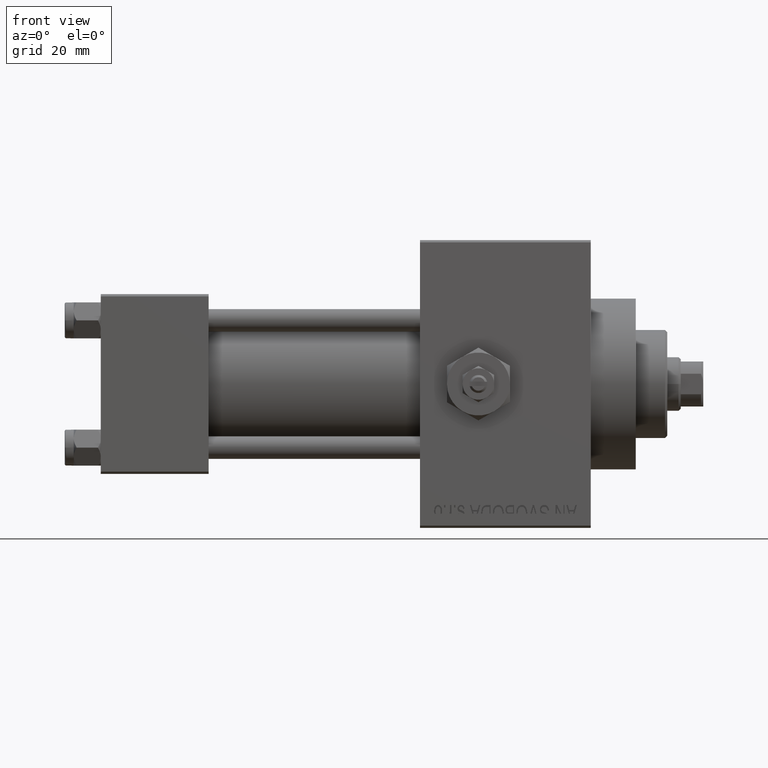
[diagram: clean part render]
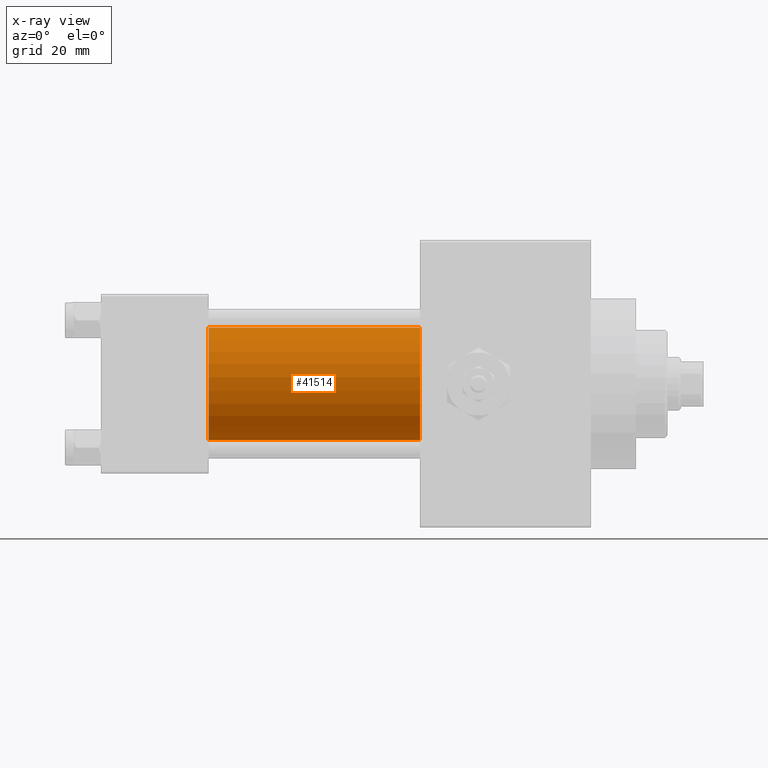
[diagram: x-ray — body ghosted, one internal face saturated and labeled with its STEP entity id]
A machine part, front view, then the same camera in x-ray: the body is ghosted and one INTERNAL B-rep face — a face not visible from any outside direction — is saturated and labeled: STEP entity #41514.
In plain terms, the highlighted cylindrical surface (partial cylindrical patch) has radius 12.5 mm, axis along (-1, -0, -0).
Its self-contained STEP definition (entity closure, byte-faithful):
#665 = VERTEX_POINT ( 'NONE', #21577 ) ;
#1392 = VERTEX_POINT ( 'NONE', #18012 ) ;
#1672 = CARTESIAN_POINT ( 'NONE',  ( 71.00000000000001421, -1.071276715031019515E-15, -12.49999999999999645 ) ) ;
#5066 = DIRECTION ( 'NONE',  ( -1.000000000000000000, -0.000000000000000000, -0.000000000000000000 ) ) ;
#7674 = CIRCLE ( 'NONE', #26633, 12.49999999999999645 ) ;
#7702 = CARTESIAN_POINT ( 'NONE',  ( 71.00000000000001421, -1.071276715031019515E-15, -12.49999999999999645 ) ) ;
#8509 = EDGE_LOOP ( 'NONE', ( #20244, #12019, #15275, #18756 ) ) ;
#12019 = ORIENTED_EDGE ( 'NONE', *, *, #24900, .T. ) ;
#12461 = VECTOR ( 'NONE', #5066, 1000.000000000000000 ) ;
#13328 = VERTEX_POINT ( 'NONE', #39403 ) ;
#15275 = ORIENTED_EDGE ( 'NONE', *, *, #25245, .F. ) ;
#15665 = DIRECTION ( 'NONE',  ( -1.000000000000000000, -0.000000000000000000, -0.000000000000000000 ) ) ;
#16016 = DIRECTION ( 'NONE',  ( 1.000000000000000000, 0.000000000000000000, 0.000000000000000000 ) ) ;
#16112 = CARTESIAN_POINT ( 'NONE',  ( 24.00000000000000000, -2.602085213965210642E-15, 0.000000000000000000 ) ) ;
#16117 = VERTEX_POINT ( 'NONE', #7702 ) ;
#18012 = CARTESIAN_POINT ( 'NONE',  ( 24.00000000000000000, -2.602085213965210642E-15, 12.49999999999999645 ) ) ;
#18756 = ORIENTED_EDGE ( 'NONE', *, *, #26143, .F. ) ;
#18890 = CYLINDRICAL_SURFACE ( 'NONE', #25625, 12.49999999999999645 ) ;
#19974 = DIRECTION ( 'NONE',  ( 0.000000000000000000, 0.000000000000000000, -1.000000000000000000 ) ) ;
#20244 = ORIENTED_EDGE ( 'NONE', *, *, #30896, .T. ) ;
#20408 = CARTESIAN_POINT ( 'NONE',  ( 71.00000000000001421, -2.602085213965210642E-15, 12.49999999999999645 ) ) ;
#21577 = CARTESIAN_POINT ( 'NONE',  ( 24.00000000000000000, -1.071276715031019515E-15, -12.49999999999999645 ) ) ;
#23765 = DIRECTION ( 'NONE',  ( 1.000000000000000000, 0.000000000000000000, 0.000000000000000000 ) ) ;
#24149 = CARTESIAN_POINT ( 'NONE',  ( 71.00000000000001421, -2.602085213965210642E-15, 0.000000000000000000 ) ) ;
#24900 = EDGE_CURVE ( 'NONE', #16117, #665, #35333, .T. ) ;
#25245 = EDGE_CURVE ( 'NONE', #1392, #665, #7674, .T. ) ;
#25625 = AXIS2_PLACEMENT_3D ( 'NONE', #31007, #15665, #46096 ) ;
#26143 = EDGE_CURVE ( 'NONE', #13328, #1392, #35020, .T. ) ;
#26633 = AXIS2_PLACEMENT_3D ( 'NONE', #16112, #23765, #42345 ) ;
#26840 = CIRCLE ( 'NONE', #28397, 12.49999999999999645 ) ;
#27438 = VECTOR ( 'NONE', #36573, 1000.000000000000000 ) ;
#28397 = AXIS2_PLACEMENT_3D ( 'NONE', #24149, #16016, #19974 ) ;
#30896 = EDGE_CURVE ( 'NONE', #13328, #16117, #26840, .T. ) ;
#31007 = CARTESIAN_POINT ( 'NONE',  ( 71.00000000000001421, -2.602085213965210642E-15, 0.000000000000000000 ) ) ;
#35020 = LINE ( 'NONE', #20408, #12461 ) ;
#35333 = LINE ( 'NONE', #1672, #27438 ) ;
#36573 = DIRECTION ( 'NONE',  ( -1.000000000000000000, -0.000000000000000000, -0.000000000000000000 ) ) ;
#39403 = CARTESIAN_POINT ( 'NONE',  ( 71.00000000000001421, -2.602085213965210642E-15, 12.49999999999999645 ) ) ;
#41171 = FACE_OUTER_BOUND ( 'NONE', #8509, .T. ) ;
#41514 = ADVANCED_FACE ( 'NONE', ( #41171 ), #18890, .F. ) ;
#42345 = DIRECTION ( 'NONE',  ( 0.000000000000000000, 0.000000000000000000, -1.000000000000000000 ) ) ;
#46096 = DIRECTION ( 'NONE',  ( 0.000000000000000000, 0.000000000000000000, 1.000000000000000000 ) ) ;